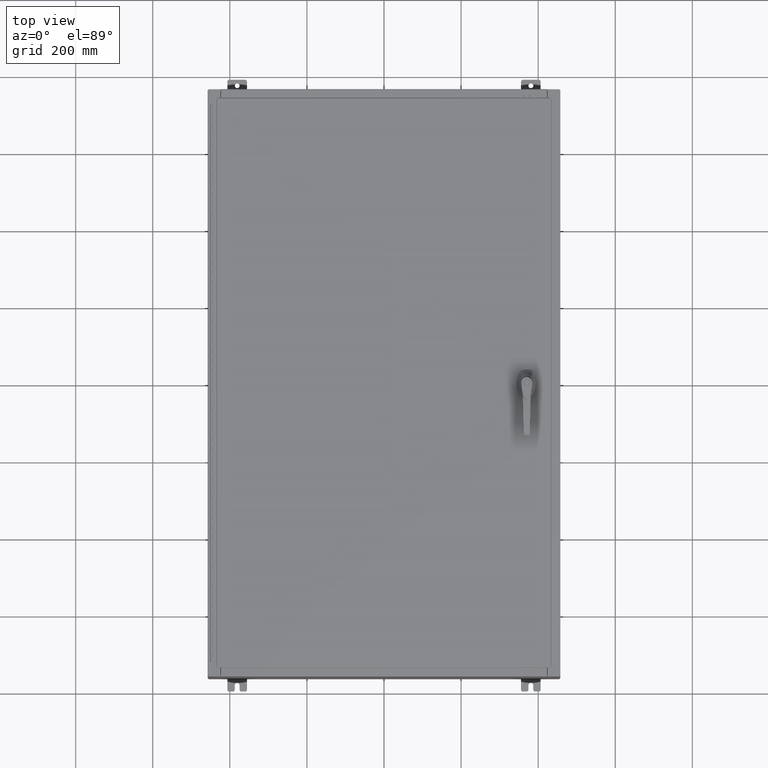
[diagram: clean part render]
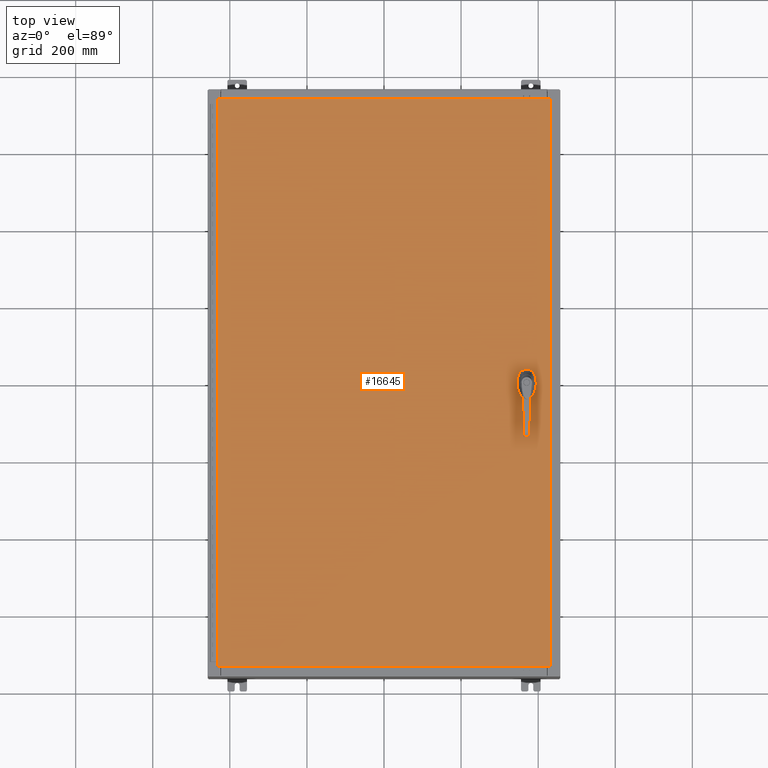
[diagram: same view with one face highlighted and labeled with its STEP entity id]
A machine part, top view. The second image highlights one B-rep face of the part: STEP entity #16645.
In plain terms, the highlighted planar face has unit normal (0, 0, -1).
Its self-contained STEP definition (entity closure, byte-faithful):
#931 = VERTEX_POINT ( 'NONE', #93803 ) ;
#1279 = ORIENTED_EDGE ( 'NONE', *, *, #34706, .F. ) ;
#1883 = FACE_BOUND ( 'NONE', #2957, .T. ) ;
#1929 = VERTEX_POINT ( 'NONE', #67085 ) ;
#2957 = EDGE_LOOP ( 'NONE', ( #1279, #103490 ) ) ;
#4349 = DIRECTION ( 'NONE',  ( 1.000000000000000000, 0.0000000000000000000, 0.0000000000000000000 ) ) ;
#5850 = DIRECTION ( 'NONE',  ( -0.0000000000000000000, 0.0000000000000000000, 1.000000000000000000 ) ) ;
#6896 = CARTESIAN_POINT ( 'NONE',  ( 14.17500000000007700, 0.2002273707563079800, 0.0000000000000000000 ) ) ;
#8407 = CARTESIAN_POINT ( 'NONE',  ( 14.77822737075631400, 0.4029999999999252000, 0.0000000000000000000 ) ) ;
#9734 = EDGE_CURVE ( 'NONE', #52481, #59963, #82649, .T. ) ;
#12802 = CARTESIAN_POINT ( 'NONE',  ( 14.98099999999993100, 8.175868191945444300E-014, 0.0000000000000000000 ) ) ;
#13339 = CARTESIAN_POINT ( 'NONE',  ( 14.57800000000000500, 0.0000000000000000000, 0.0000000000000000000 ) ) ;
#13488 = VERTEX_POINT ( 'NONE', #134399 ) ;
#14249 = AXIS2_PLACEMENT_3D ( 'NONE', #15826, #93202, #26964 ) ;
#15826 = CARTESIAN_POINT ( 'NONE',  ( 14.57800000000000500, 0.0000000000000000000, 0.0000000000000000000 ) ) ;
#16645 = ADVANCED_FACE ( 'NONE', ( #1883, #142025, #86611 ), #110469, .F. ) ;
#16720 = ORIENTED_EDGE ( 'NONE', *, *, #125078, .F. ) ;
#17305 = EDGE_CURVE ( 'NONE', #931, #27565, #31126, .T. ) ;
#17451 = ORIENTED_EDGE ( 'NONE', *, *, #140597, .F. ) ;
#17707 = CARTESIAN_POINT ( 'NONE',  ( -16.99029999999999800, -29.00630000000000300, 1.946441695485787500E-015 ) ) ;
#17854 = CARTESIAN_POINT ( 'NONE',  ( -16.99029999999998400, 29.00630000000000000, 4.166068190338001500E-015 ) ) ;
#20811 = VERTEX_POINT ( 'NONE', #89109 ) ;
#21663 = CARTESIAN_POINT ( 'NONE',  ( 0.0000000000000000000, 0.4029999999999252000, 0.0000000000000000000 ) ) ;
#22193 = VERTEX_POINT ( 'NONE', #45072 ) ;
#24443 = DIRECTION ( 'NONE',  ( 1.000000000000000000, 0.0000000000000000000, 0.0000000000000000000 ) ) ;
#24499 = EDGE_CURVE ( 'NONE', #13488, #101973, #36699, .T. ) ;
#26964 = DIRECTION ( 'NONE',  ( 1.000000000000000000, 0.0000000000000000000, 0.0000000000000000000 ) ) ;
#27125 = VECTOR ( 'NONE', #110094, 39.37007874015748100 ) ;
#27565 = VERTEX_POINT ( 'NONE', #17707 ) ;
#27958 = CARTESIAN_POINT ( 'NONE',  ( 16.99030000000000500, -29.00630000000000000, -2.048885995248197400E-016 ) ) ;
#28699 = EDGE_CURVE ( 'NONE', #39222, #99852, #70617, .T. ) ;
#29139 = AXIS2_PLACEMENT_3D ( 'NONE', #72008, #5850, #83144 ) ;
#31126 = LINE ( 'NONE', #17854, #115822 ) ;
#31486 = EDGE_CURVE ( 'NONE', #1929, #931, #115309, .T. ) ;
#31623 = LINE ( 'NONE', #21663, #109433 ) ;
#34706 = EDGE_CURVE ( 'NONE', #99852, #39222, #130419, .T. ) ;
#36699 = CIRCLE ( 'NONE', #29139, 0.4499999999999168000 ) ;
#37123 = CARTESIAN_POINT ( 'NONE',  ( 0.0000000000000000000, -0.4029999999999252000, 0.0000000000000000000 ) ) ;
#37413 = ORIENTED_EDGE ( 'NONE', *, *, #24499, .F. ) ;
#39222 = VERTEX_POINT ( 'NONE', #116311 ) ;
#40100 = DIRECTION ( 'NONE',  ( 0.0000000000000000000, -1.000000000000000000, 0.0000000000000000000 ) ) ;
#40656 = CARTESIAN_POINT ( 'NONE',  ( 14.57800000000000500, 0.0000000000000000000, 0.0000000000000000000 ) ) ;
#40894 = ORIENTED_EDGE ( 'NONE', *, *, #69795, .T. ) ;
#45072 = CARTESIAN_POINT ( 'NONE',  ( 14.37777262924369400, 0.4029999999999252000, 0.0000000000000000000 ) ) ;
#47361 = CARTESIAN_POINT ( 'NONE',  ( 14.74950000000000500, -1.338000000000000100, 0.0000000000000000000 ) ) ;
#47516 = ORIENTED_EDGE ( 'NONE', *, *, #17305, .T. ) ;
#51372 = CARTESIAN_POINT ( 'NONE',  ( 14.98099999999993100, 0.2002273707563075900, 0.0000000000000000000 ) ) ;
#51725 = DIRECTION ( 'NONE',  ( 1.000000000000000000, 0.0000000000000000000, 0.0000000000000000000 ) ) ;
#52481 = VERTEX_POINT ( 'NONE', #51372 ) ;
#53368 = LINE ( 'NONE', #68157, #134739 ) ;
#54210 = DIRECTION ( 'NONE',  ( -0.0000000000000000000, 0.0000000000000000000, 1.000000000000000000 ) ) ;
#57415 = AXIS2_PLACEMENT_3D ( 'NONE', #13339, #90669, #24443 ) ;
#59963 = VERTEX_POINT ( 'NONE', #8407 ) ;
#62838 = CARTESIAN_POINT ( 'NONE',  ( 16.99030000000000500, -29.00630000000000000, -2.048885995248197400E-016 ) ) ;
#63625 = VECTOR ( 'NONE', #114422, 39.37007874015748100 ) ;
#64613 = EDGE_LOOP ( 'NONE', ( #108102, #40894, #70041, #47516 ) ) ;
#65100 = CIRCLE ( 'NONE', #14249, 0.4499999999999168000 ) ;
#66945 = EDGE_CURVE ( 'NONE', #52481, #90250, #99278, .T. ) ;
#67085 = CARTESIAN_POINT ( 'NONE',  ( 16.99030000000000500, 29.00630000000000300, 1.946441695485787500E-015 ) ) ;
#68157 = CARTESIAN_POINT ( 'NONE',  ( -16.99029999999999800, -29.00630000000000300, 1.946441695485787500E-015 ) ) ;
#69795 = EDGE_CURVE ( 'NONE', #123596, #1929, #105756, .T. ) ;
#69837 = VECTOR ( 'NONE', #90639, 39.37007874015748100 ) ;
#70041 = ORIENTED_EDGE ( 'NONE', *, *, #31486, .T. ) ;
#70503 = DIRECTION ( 'NONE',  ( -0.0000000000000000000, 0.0000000000000000000, 1.000000000000000000 ) ) ;
#70617 = CIRCLE ( 'NONE', #75696, 0.1715000000000011500 ) ;
#71121 = CIRCLE ( 'NONE', #139973, 0.4499999999999168000 ) ;
#71771 = VERTEX_POINT ( 'NONE', #6896 ) ;
#71982 = CARTESIAN_POINT ( 'NONE',  ( 14.98099999999993200, -0.2002273707563079800, 0.0000000000000000000 ) ) ;
#72008 = CARTESIAN_POINT ( 'NONE',  ( 14.57800000000000500, 0.0000000000000000000, 0.0000000000000000000 ) ) ;
#75696 = AXIS2_PLACEMENT_3D ( 'NONE', #120475, #54210, #131633 ) ;
#76765 = AXIS2_PLACEMENT_3D ( 'NONE', #99351, #143414, #121578 ) ;
#78050 = AXIS2_PLACEMENT_3D ( 'NONE', #136832, #70503, #4349 ) ;
#82580 = EDGE_CURVE ( 'NONE', #59963, #22193, #31623, .T. ) ;
#82649 = CIRCLE ( 'NONE', #57415, 0.4499999999999168000 ) ;
#83054 = DIRECTION ( 'NONE',  ( 0.0000000000000000000, 1.000000000000000000, 0.0000000000000000000 ) ) ;
#83144 = DIRECTION ( 'NONE',  ( 1.000000000000000000, 0.0000000000000000000, 0.0000000000000000000 ) ) ;
#86611 = FACE_BOUND ( 'NONE', #102236, .T. ) ;
#88631 = ORIENTED_EDGE ( 'NONE', *, *, #9734, .F. ) ;
#89109 = CARTESIAN_POINT ( 'NONE',  ( 14.77822737075631400, -0.4029999999999252000, 0.0000000000000000000 ) ) ;
#89351 = DIRECTION ( 'NONE',  ( 0.0000000000000000000, -1.000000000000000000, 0.0000000000000000000 ) ) ;
#89604 = LINE ( 'NONE', #37123, #63625 ) ;
#89820 = CARTESIAN_POINT ( 'NONE',  ( 14.17500000000007700, 0.0000000000000000000, 0.0000000000000000000 ) ) ;
#90250 = VERTEX_POINT ( 'NONE', #71982 ) ;
#90639 = DIRECTION ( 'NONE',  ( 5.457491617345625800E-015, -1.000000000000000000, 0.0000000000000000000 ) ) ;
#90669 = DIRECTION ( 'NONE',  ( -0.0000000000000000000, 0.0000000000000000000, 1.000000000000000000 ) ) ;
#90877 = CARTESIAN_POINT ( 'NONE',  ( 14.37777262924369400, -0.4029999999999252000, 0.0000000000000000000 ) ) ;
#91313 = EDGE_CURVE ( 'NONE', #22193, #71771, #65100, .T. ) ;
#93202 = DIRECTION ( 'NONE',  ( -0.0000000000000000000, 0.0000000000000000000, 1.000000000000000000 ) ) ;
#93803 = CARTESIAN_POINT ( 'NONE',  ( -16.99029999999998400, 29.00630000000000000, 4.166068190338001500E-015 ) ) ;
#97367 = EDGE_CURVE ( 'NONE', #20811, #90250, #71121, .T. ) ;
#98981 = CARTESIAN_POINT ( 'NONE',  ( 16.99030000000000500, 29.00630000000000300, 1.946441695485787500E-015 ) ) ;
#99278 = LINE ( 'NONE', #12802, #69837 ) ;
#99351 = CARTESIAN_POINT ( 'NONE',  ( 0.0000000000000000000, 0.0000000000000000000, 0.0000000000000000000 ) ) ;
#99469 = DIRECTION ( 'NONE',  ( -1.000000000000000000, 0.0000000000000000000, 0.0000000000000000000 ) ) ;
#99852 = VERTEX_POINT ( 'NONE', #47361 ) ;
#99871 = ORIENTED_EDGE ( 'NONE', *, *, #66945, .T. ) ;
#101973 = VERTEX_POINT ( 'NONE', #90877 ) ;
#102236 = EDGE_LOOP ( 'NONE', ( #99871, #139791, #17451, #37413, #16720, #115755, #105157, #88631 ) ) ;
#102563 = VECTOR ( 'NONE', #89351, 39.37007874015748100 ) ;
#103490 = ORIENTED_EDGE ( 'NONE', *, *, #28699, .F. ) ;
#105157 = ORIENTED_EDGE ( 'NONE', *, *, #82580, .F. ) ;
#105756 = LINE ( 'NONE', #27958, #131721 ) ;
#108102 = ORIENTED_EDGE ( 'NONE', *, *, #140011, .T. ) ;
#109433 = VECTOR ( 'NONE', #99469, 39.37007874015748100 ) ;
#110094 = DIRECTION ( 'NONE',  ( -1.000000000000000000, -0.0000000000000000000, -0.0000000000000000000 ) ) ;
#110469 = PLANE ( 'NONE',  #76765 ) ;
#114422 = DIRECTION ( 'NONE',  ( 1.000000000000000000, 0.0000000000000000000, 0.0000000000000000000 ) ) ;
#115309 = LINE ( 'NONE', #98981, #27125 ) ;
#115755 = ORIENTED_EDGE ( 'NONE', *, *, #91313, .F. ) ;
#115822 = VECTOR ( 'NONE', #40100, 39.37007874015748100 ) ;
#116311 = CARTESIAN_POINT ( 'NONE',  ( 14.40650000000000300, -1.338000000000000100, 0.0000000000000000000 ) ) ;
#117943 = DIRECTION ( 'NONE',  ( -0.0000000000000000000, 0.0000000000000000000, 1.000000000000000000 ) ) ;
#120475 = CARTESIAN_POINT ( 'NONE',  ( 14.57800000000000500, -1.338000000000000100, 0.0000000000000000000 ) ) ;
#121578 = DIRECTION ( 'NONE',  ( -1.000000000000000000, 0.0000000000000000000, -0.0000000000000000000 ) ) ;
#123596 = VERTEX_POINT ( 'NONE', #62838 ) ;
#125078 = EDGE_CURVE ( 'NONE', #71771, #13488, #135480, .T. ) ;
#130419 = CIRCLE ( 'NONE', #78050, 0.1715000000000011500 ) ;
#131633 = DIRECTION ( 'NONE',  ( 1.000000000000000000, 0.0000000000000000000, 0.0000000000000000000 ) ) ;
#131721 = VECTOR ( 'NONE', #83054, 39.37007874015748100 ) ;
#134399 = CARTESIAN_POINT ( 'NONE',  ( 14.17500000000007700, -0.2002273707563079800, 0.0000000000000000000 ) ) ;
#134487 = DIRECTION ( 'NONE',  ( 1.000000000000000000, -0.0000000000000000000, -0.0000000000000000000 ) ) ;
#134739 = VECTOR ( 'NONE', #134487, 39.37007874015748100 ) ;
#135480 = LINE ( 'NONE', #89820, #102563 ) ;
#136832 = CARTESIAN_POINT ( 'NONE',  ( 14.57800000000000500, -1.338000000000000100, 0.0000000000000000000 ) ) ;
#139791 = ORIENTED_EDGE ( 'NONE', *, *, #97367, .F. ) ;
#139973 = AXIS2_PLACEMENT_3D ( 'NONE', #40656, #117943, #51725 ) ;
#140011 = EDGE_CURVE ( 'NONE', #27565, #123596, #53368, .T. ) ;
#140597 = EDGE_CURVE ( 'NONE', #101973, #20811, #89604, .T. ) ;
#142025 = FACE_OUTER_BOUND ( 'NONE', #64613, .T. ) ;
#143414 = DIRECTION ( 'NONE',  ( 0.0000000000000000000, 0.0000000000000000000, -1.000000000000000000 ) ) ;